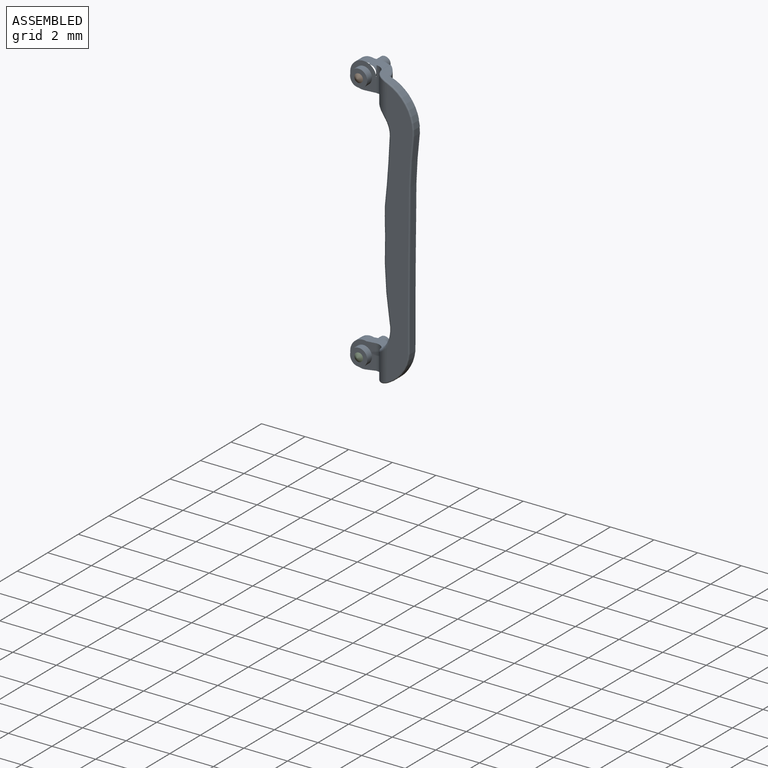
[diagram: assembled view]
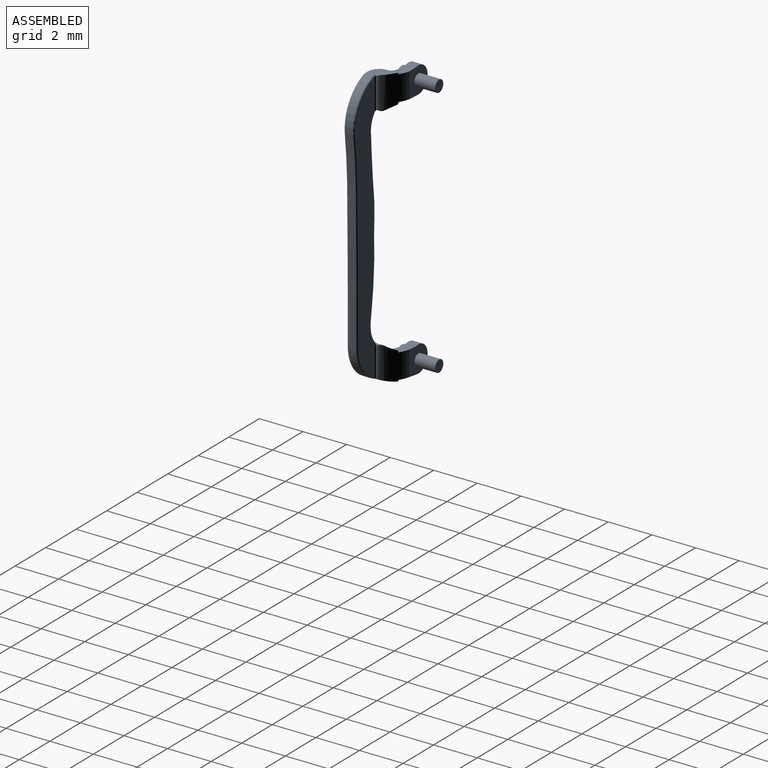
[diagram: assembled view, second angle]
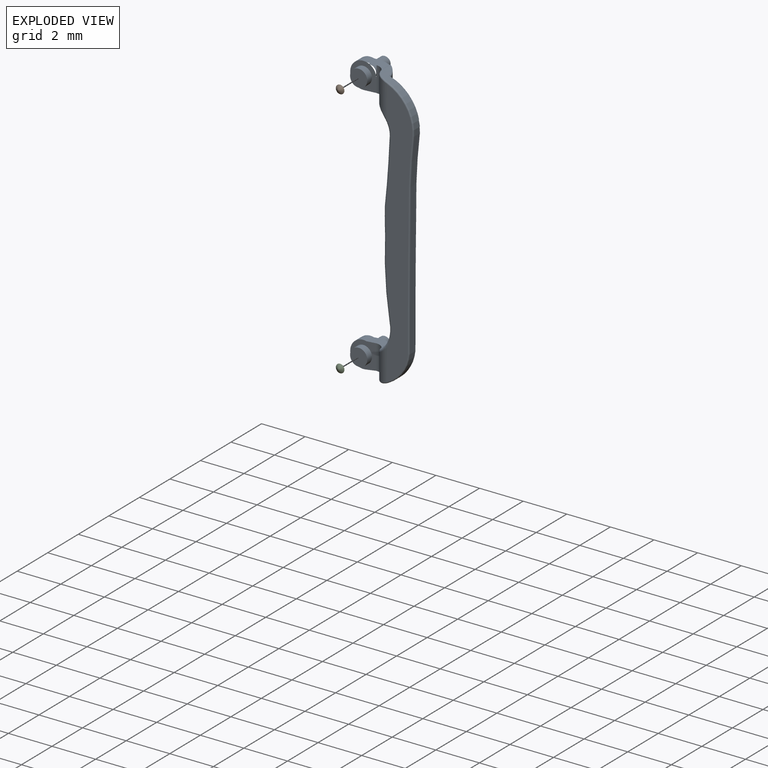
[diagram: exploded view]
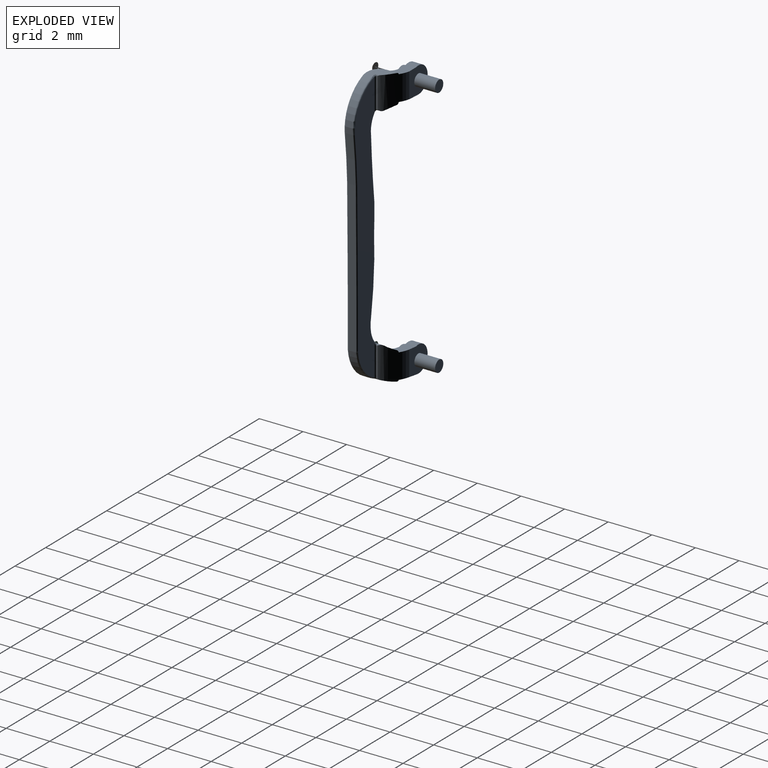
[diagram: exploded view, second angle]
ASSEMBLY  parts=3 mates=2
PART A: 95 faces, bbox 3.8x2.4x13.4 mm
  f0: cylinder r=0.39mm len=0.79mm, axis (0,1,0), area 0.8mm2, adj f1,f2
  f1: plane 0.79x0.79mm, normal (0,-1,0), area 0.5mm2, adj f0
  f2: plane 1.23x1.23mm, normal (0,-1,0), area 0.7mm2, adj f0,f3,f92,f93,f94
  f3: cylinder r=0.48mm len=1.15mm, axis (0,0,1), area 0.7mm2, adj f2,f4,f90,f91,f94
  f4: plane 0.82x0.45mm, normal (0,0,-1), area 0.2mm2, adj f3,f5,f89,f90,f92
  f5: cylinder r=1.33mm len=1.55mm, axis (0,0,-1), area 1.7mm2, adj f4,f6,f9,f82,f83,f84,f85,f86
  f6: plane 1.21x1.21mm, normal (0,1,0), area 1.1mm2, adj f5,f7,f91,f92,f93
  f7: cylinder r=0.27mm len=0.95mm, axis (0,-1,0), area 1.6mm2, adj f6,f8
  f8: plane 0.54x0.54mm, normal (0,1,0), area 0.2mm2, adj f7
  f9: cylinder r=0.12mm len=0.49mm, axis (0,1,0), area 0.1mm2, adj f5,f10,f82,f89
  f10: bspline ~0.83x0.75mm, area 0.2mm2, adj f9,f11,f82,f90
  f11: torus R=1.19mm, axis (0,-1,0), area 0.1mm2, adj f10,f12,f81,f82
  f12: plane 12.34x1.2mm, normal (0,-1,0), area 10.9mm2, adj f11,f13,f73,f74,f75,f76,f77,f78
  f13: torus R=1.88mm, axis (0,-1,0), area 0.2mm2, adj f12,f14,f72,f86
  f14: sphere r=0.06mm, area 0mm2, adj f13,f15,f73
  f15: cylinder r=0.06mm len=0.35mm, axis (0,-1,0), area 0mm2, adj f14,f16,f71,f86
  f16: cylinder r=24.3mm len=3.22mm, axis (0,1,0), area 1.1mm2, adj f15,f17,f70,f73
  f17: cylinder r=0.06mm len=0.35mm, axis (0,1,0), area 0mm2, adj f16,f18,f68,f69
  f18: cylinder r=395.84mm len=5.86mm, axis (0,1,0), area 2mm2, adj f17,f19,f65,f66,f74
  f19: bspline ~0.07x0.07mm, area 0mm2, adj f18,f20,f65,f66
  f20: torus R=1.76mm, axis (0,1,0), area 0.2mm2, adj f19,f21,f63,f64
  f21: cylinder r=1.83mm len=1.63mm, axis (0,1,0), area 1mm2, adj f20,f22,f59,f60,f61,f62,f64,f66
  f22: bspline ~0.72x0.65mm, area 0mm2, adj f21,f23,f59,f62
  f23: cylinder r=0.48mm len=1.15mm, axis (0,0,1), area 0.7mm2, adj f22,f24,f32,f54,f55,f56,f76
  f24: bspline ~0.47x0.38mm, area 0mm2, adj f23,f25,f62
  f25: plane 0.85x0.52mm, normal (0,0,-1), area 0.2mm2, adj f24,f26,f61,f62
  f26: plane 0.5x0.45mm, normal (0.15,0,-0.99), area 0.2mm2, adj f25,f27,f31,f56,f61
  f27: plane 1.22x1.2mm, normal (0,1,0), area 1mm2, adj f26,f28,f29,f31,f61
  f28: plane 0.45x0.45mm, normal (-0.08,0,1), area 0.2mm2, adj f27,f31,f55,f56,f61
  f29: cylinder r=0.27mm len=0.95mm, axis (0,-1,0), area 1.6mm2, adj f27,f30
  f30: plane 0.54x0.54mm, normal (0,1,0), area 0.2mm2, adj f29
  f31: cylinder r=0.6mm len=1.21mm, axis (0,1,0), area 1mm2, adj f26,f27,f28,f56
  f32: bspline ~0.71x0.61mm, area 0mm2, adj f23,f33,f34,f54
  f33: bspline ~0.73x0.64mm, area 0.1mm2, adj f32,f34,f76,f77
  f34: cylinder r=1.2mm len=1.01mm, axis (0,1,0), area 0.5mm2, adj f32,f33,f35,f49,f50,f53,f54,f61
  f35: cylinder r=1.45mm len=0.62mm, axis (0,1,0), area 0.2mm2, adj f34,f36,f48,f78
  f36: cylinder r=17.62mm len=3.54mm, axis (0,1,0), area 1mm2, adj f35,f37,f47,f79
  f37: torus R=17.56mm, axis (0,1,0), area 0.3mm2, adj f36,f38,f48,f63
  f38: torus R=27.39mm, axis (0,1,0), area 0.1mm2, adj f37,f39,f47,f63
  f39: torus R=42.45mm, axis (0,1,0), area 0.3mm2, adj f38,f40,f46,f63
  f40: torus R=1.13mm, axis (0,1,0), area 0.1mm2, adj f39,f41,f63,f82
  f41: bspline ~0.22x0.18mm, area 0mm2, adj f40,f42,f82,f83
  f42: cylinder r=0.06mm len=1.46mm, axis (0,0,1), area 0.1mm2, adj f41,f43,f63,f84
  f43: bspline ~0.07x0.06mm, area 0mm2, adj f42,f44,f45,f84
  f44: bspline ~0.11x0.1mm, area 0mm2, adj f43,f45,f85
  f45: torus R=1.88mm, axis (0,1,0), area 0.2mm2, adj f43,f44,f63,f71,f86
  f46: cylinder r=42.38mm len=2.85mm, axis (0,1,0), area 0.8mm2, adj f39,f47,f81,f82
  f47: cylinder r=27.45mm len=1.18mm, axis (0,1,0), area 0.3mm2, adj f36,f38,f46,f80
  f48: torus R=1.51mm, axis (0,1,0), area 0.1mm2, adj f35,f37,f49,f63
  f49: torus R=1.26mm, axis (0,1,0), area 0.1mm2, adj f34,f48,f50,f63
  f50: bspline ~0.22x0.18mm, area 0mm2, adj f34,f49,f51,f53
  f51: cylinder r=0.06mm len=1.47mm, axis (0,0,1), area 0.1mm2, adj f50,f52,f63,f64
  f52: plane 1.34x0.05mm, normal (1,0,0), area 0.1mm2, adj f51,f53,f60,f61
  f53: cylinder r=0.06mm len=0.25mm, axis (0,1,0), area 0mm2, adj f34,f50,f52,f61
  f54: cylinder r=0.12mm len=0.65mm, axis (0,1,0), area 0.1mm2, adj f23,f32,f34,f55,f61
  f55: plane 0.76x0.43mm, normal (0,0,1), area 0.2mm2, adj f23,f28,f54,f61
  f56: plane 1.23x1.21mm, normal (0,-1,0), area 0.8mm2, adj f23,f26,f28,f31,f57
  f57: cylinder r=0.39mm len=0.79mm, axis (0,1,0), area 0.8mm2, adj f56,f58
  f58: plane 0.79x0.79mm, normal (0,-1,0), area 0.5mm2, adj f57
  f59: bspline ~0.77x0.62mm, area 0.1mm2, adj f21,f22,f75,f76
  f60: cylinder r=0.06mm len=0.14mm, axis (0,1,0), area 0mm2, adj f21,f52,f61,f64
  f61: cylinder r=1.33mm len=1.55mm, axis (0,0,-1), area 1.7mm2, adj f21,f25,f26,f27,f28,f34,f52,f53
  f62: cylinder r=0.06mm len=0.64mm, axis (0,1,0), area 0.1mm2, adj f21,f22,f24,f25,f61
  f63: plane 12.44x1.28mm, normal (0,1,0), area 11.8mm2, adj f20,f37,f38,f39,f40,f42,f45,f48
  f64: bspline ~0.14x0.13mm, area 0mm2, adj f20,f21,f51,f60
  f65: torus R=395.89mm, axis (0,1,0), area 0.5mm2, adj f18,f19,f63,f69
  f66: cylinder r=0.06mm len=0.34mm, axis (0,-1,0), area 0mm2, adj f18,f19,f21,f67
  f67: sphere r=0.06mm, area 0mm2, adj f66,f74,f75
  f68: sphere r=0.06mm, area 0mm2, adj f17,f73,f74
  f69: sphere r=0.06mm, area 0mm2, adj f17,f65,f70
  f70: torus R=24.36mm, axis (0,1,0), area 0.3mm2, adj f16,f63,f69,f71
  f71: sphere r=0.06mm, area 0mm2, adj f15,f45,f70
  f72: bspline ~0.88x0.85mm, area 0.1mm2, adj f13,f86,f87,f90
  f73: torus R=24.36mm, axis (0,-1,0), area 0.3mm2, adj f12,f14,f16,f68
  f74: torus R=395.89mm, axis (0,-1,0), area 0.5mm2, adj f12,f18,f67,f68
  f75: torus R=1.77mm, axis (0,-1,0), area 0.2mm2, adj f12,f21,f59,f67
  f76: cylinder r=0.69mm len=1.63mm, axis (0,0,1), area 1.2mm2, adj f12,f23,f33,f59
  f77: torus R=1.32mm, axis (0,-1,0), area 0.1mm2, adj f12,f33,f34,f78
  f78: torus R=1.57mm, axis (0,-1,0), area 0.1mm2, adj f12,f35,f77,f79
  f79: torus R=17.5mm, axis (0,-1,0), area 0.7mm2, adj f12,f36,f78,f80
  f80: torus R=27.34mm, axis (0,-1,0), area 0.2mm2, adj f12,f47,f79,f81
  f81: torus R=42.5mm, axis (0,-1,0), area 0.5mm2, adj f11,f12,f46,f80
  f82: cylinder r=1.07mm len=1.16mm, axis (0,1,0), area 0.6mm2, adj f5,f9,f10,f11,f40,f41,f46,f83
  f83: cylinder r=0.06mm len=0.25mm, axis (0,1,0), area 0mm2, adj f5,f41,f82,f84
  f84: plane 1.37x0.05mm, normal (1,0,0), area 0.1mm2, adj f5,f42,f43,f83,f85
  f85: cylinder r=0.06mm len=0.25mm, axis (0,1,0), area 0mm2, adj f5,f44,f84,f86
  f86: cylinder r=1.93mm len=2.07mm, axis (0,1,0), area 1.2mm2, adj f5,f13,f15,f45,f72,f85,f87
  f87: cylinder r=0.06mm len=0.49mm, axis (0,1,0), area 0mm2, adj f5,f72,f86,f88
  f88: plane 0.49x0.01mm, normal (-1,0,0), area 0mm2, adj f5,f87,f90,f91
  f89: plane 0.49x0mm, normal (-1,0,0), area 0mm2, adj f4,f5,f9,f90
  f90: cylinder r=0.69mm len=1.63mm, axis (0,0,1), area 1.2mm2, adj f3,f4,f10,f12,f72,f88,f89,f91
  f91: plane 0.89x0.82mm, normal (0,0,1), area 0.4mm2, adj f3,f5,f6,f88,f90,f93,f94
  f92: plane 0.61x0.46mm, normal (0.06,0,-1), area 0.3mm2, adj f2,f4,f6,f93
  f93: cylinder r=0.6mm len=1.21mm, axis (0,1,0), area 0.9mm2, adj f2,f6,f91,f92
  f94: plane 0.62x0.49mm, normal (0,-1,0), area 0.1mm2, adj f2,f3,f91
PART B: 2 faces, bbox 0.4x0.1x0.4 mm
  f0: revolved ~0.4x0.4mm, area 0.1mm2, adj f1
  f1: plane 0.4x0.4mm, normal (0,1,0), area 0.1mm2, adj f0
PART C: same geometry as B
PLACE A t=(-5.82,12.33,-14.48)mm fixed
PLACE B t=(-7.54,37.52,10.2)mm
PLACE C t=(-7.54,37.52,-1.37)mm
MATE fastened A.f0 <-> B.f1  axis (0,-1,0) through (-9.17,12.33,10.2)mm
MATE fastened A.f31 <-> C.f1  axis (0,-1,0) through (-9.16,12.33,-1.37)mm
